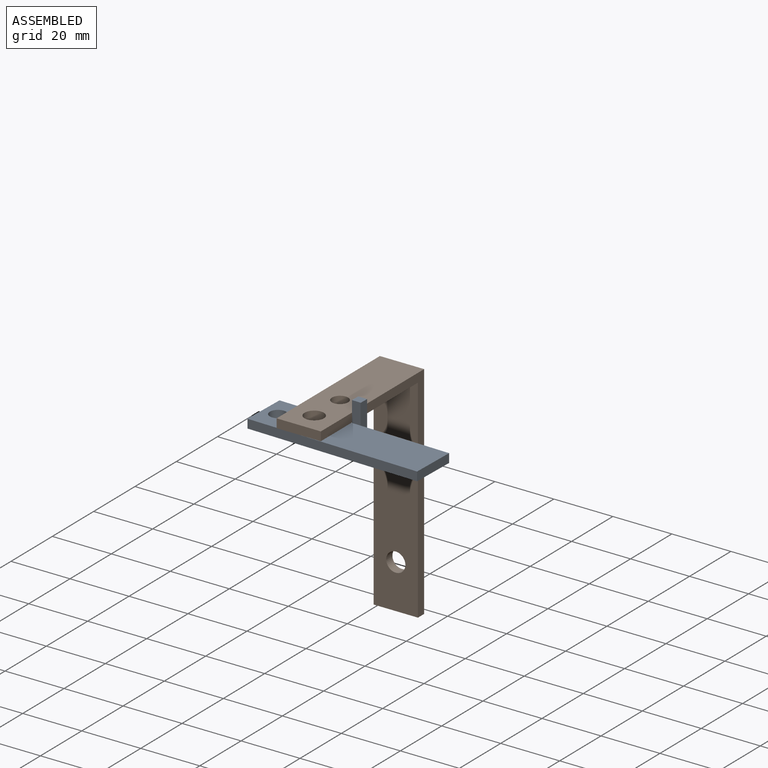
[diagram: assembled view]
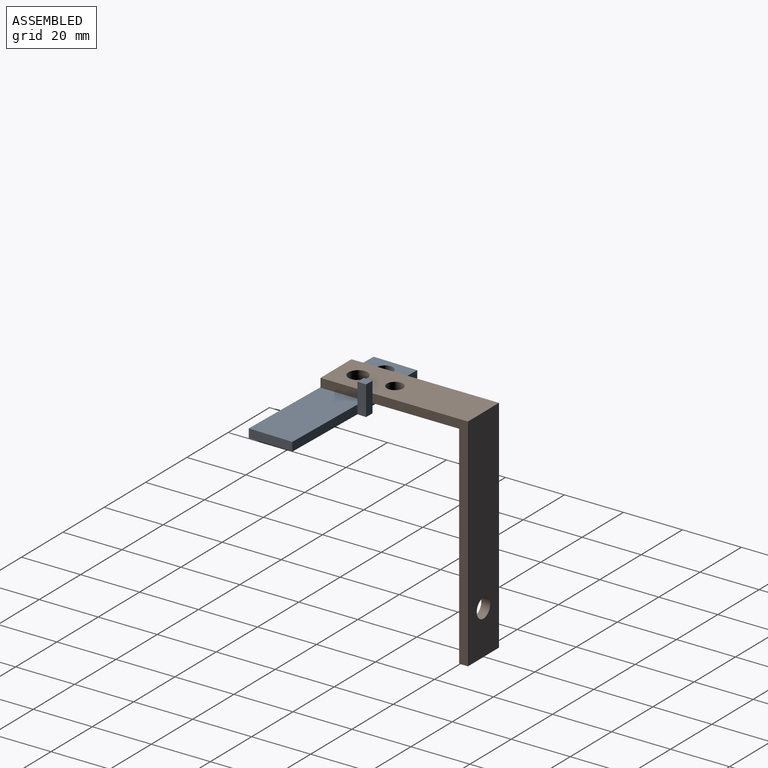
[diagram: assembled view, second angle]
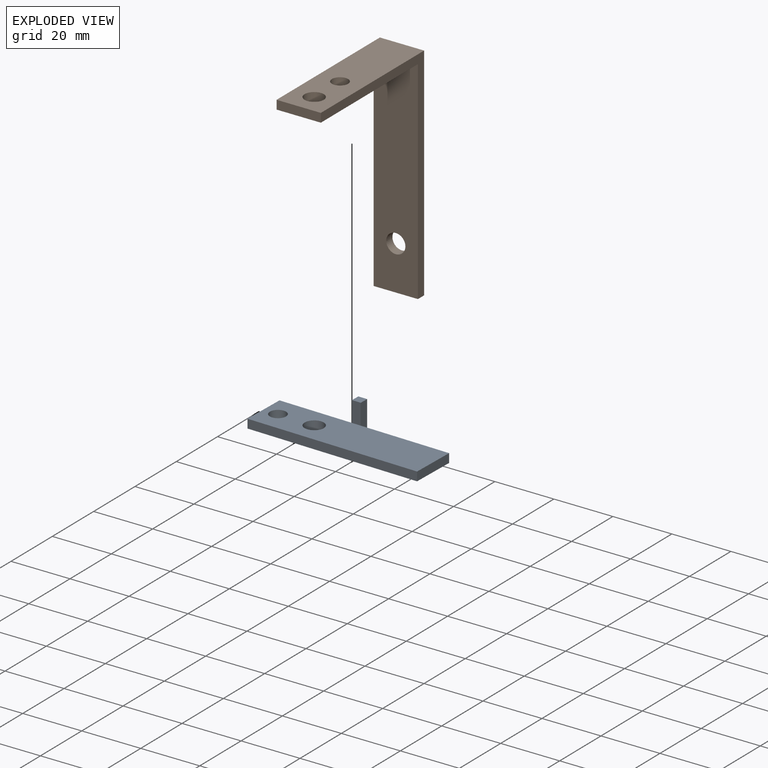
[diagram: exploded view]
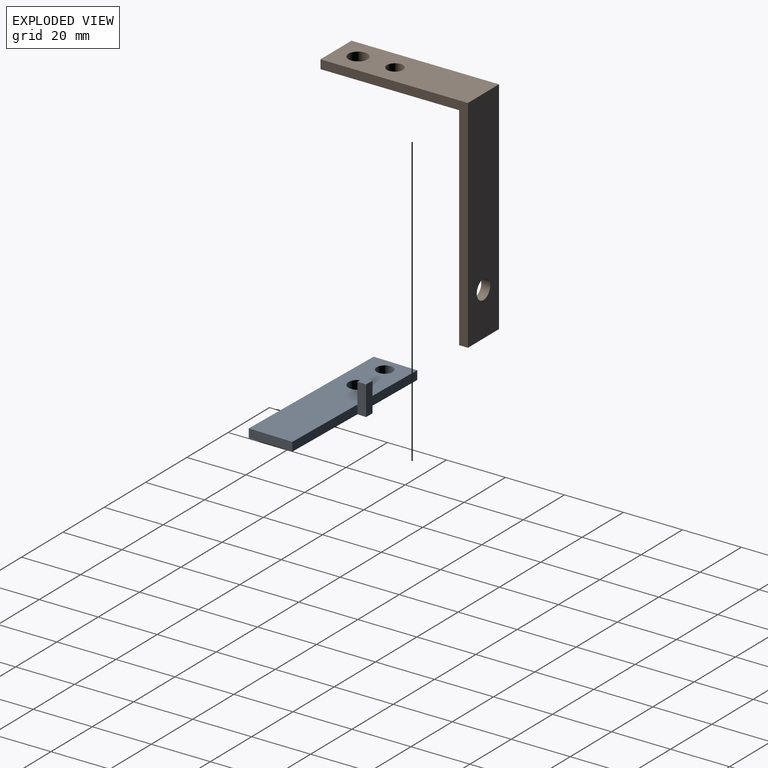
[diagram: exploded view, second angle]
ASSEMBLY  parts=2 mates=2
PART A: 14 faces, bbox 18x10x58.5 mm
  f0: plane 30.5x3mm, normal (1,0,0), area 91.5mm2, adj f1,f5,f6,f9
  f1: plane 15x3mm, normal (0,0,1), area 45mm2, adj f0,f2,f5,f6
  f2: plane 58.5x3mm, normal (-1,0,0), area 175.5mm2, adj f1,f5,f6,f7
  f3: cylinder r=3.25mm len=6.5mm, axis (0,1,0), area 61.3mm2, adj f5,f6
  f4: plane 25x3mm, normal (1,0,0), area 75mm2, adj f5,f6,f7,f10
  f5: plane 58.5x18mm, normal (0,-1,0), area 829.6mm2, adj f0,f1,f2,f3,f4,f7,f8,f9
  f6: plane 58.5x15mm, normal (0,1,0), area 820.6mm2, adj f0,f1,f2,f3,f4,f7,f8,f13
  f7: plane 15x3mm, normal (0,0,-1), area 45mm2, adj f2,f4,f5,f6
  f8: cylinder r=2.75mm len=5.5mm, axis (0,-1,0), area 51.8mm2, adj f5,f6
  f9: plane 10x3mm, normal (0,0,1), area 30mm2, adj f0,f5,f11,f12,f13
  f10: plane 10x3mm, normal (0,0,-1), area 30mm2, adj f4,f5,f11,f12,f13
  f11: plane 3x3mm, normal (0,1,0), area 9mm2, adj f9,f10,f12,f13
  f12: plane 10x3mm, normal (1,0,0), area 30mm2, adj f5,f9,f10,f11
  f13: plane 7x3mm, normal (-1,0,0), area 21mm2, adj f6,f9,f10,f11
PART B: 11 faces, bbox 15x50x75 mm
  f0: plane 72x15mm, normal (0,-1,0), area 1046.8mm2, adj f2,f3,f4,f5,f7
  f1: plane 50x15mm, normal (0,0,1), area 693.1mm2, adj f2,f5,f6,f8,f9,f10
  f2: plane 75x50mm, normal (-1,0,0), area 366mm2, adj f0,f1,f3,f6,f7,f8
  f3: plane 15x3mm, normal (0,0,-1), area 45mm2, adj f0,f2,f5,f6
  f4: cylinder r=3.25mm len=6.5mm, axis (0,1,0), area 61.3mm2, adj f0,f6
  f5: plane 75x50mm, normal (1,0,0), area 366mm2, adj f0,f1,f3,f6,f7,f8
  f6: plane 75x15mm, normal (0,1,0), area 1091.8mm2, adj f1,f2,f3,f4,f5
  f7: plane 47x15mm, normal (0,0,-1), area 648.1mm2, adj f0,f2,f5,f8,f9,f10
  f8: plane 15x3mm, normal (0,-1,0), area 45mm2, adj f1,f2,f5,f7
  f9: cylinder r=3.25mm len=6.5mm, axis (0,0,-1), area 61.3mm2, adj f1,f7
  f10: cylinder r=2.75mm len=5.5mm, axis (0,0,-1), area 51.8mm2, adj f1,f7
PLACE A rot(axis=(0.59,0.57,0.57),119.2deg) t=(-2.63,-25.86,39.33)mm
PLACE B t=(-19.37,17.04,4.83)mm fixed
MATE parallel B.f10 <-> A.f6  axis (0,0,-1) through (-19.37,-12.96,39.33)mm
MATE cylindrical A.f3 <-> B.f9  axis (0,0,1) through (-19.37,-25.46,39.33)mm
